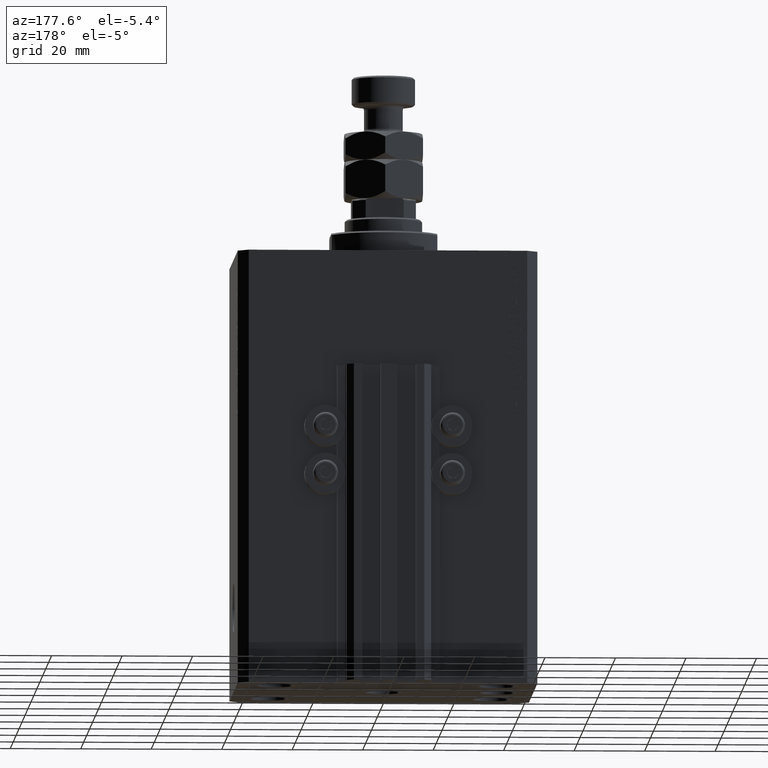
[diagram: clean part render]
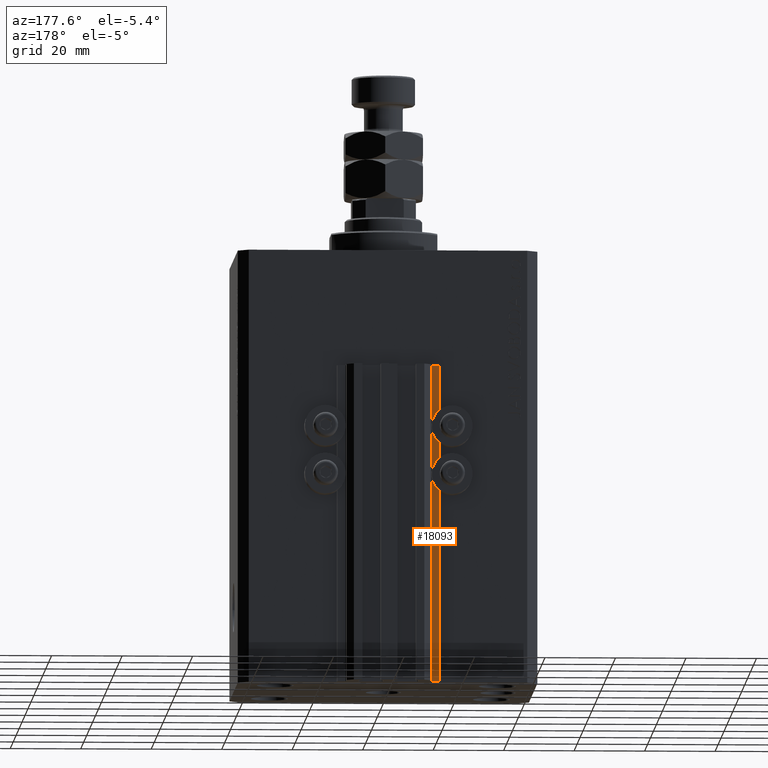
[diagram: same view with one face highlighted and labeled with its STEP entity id]
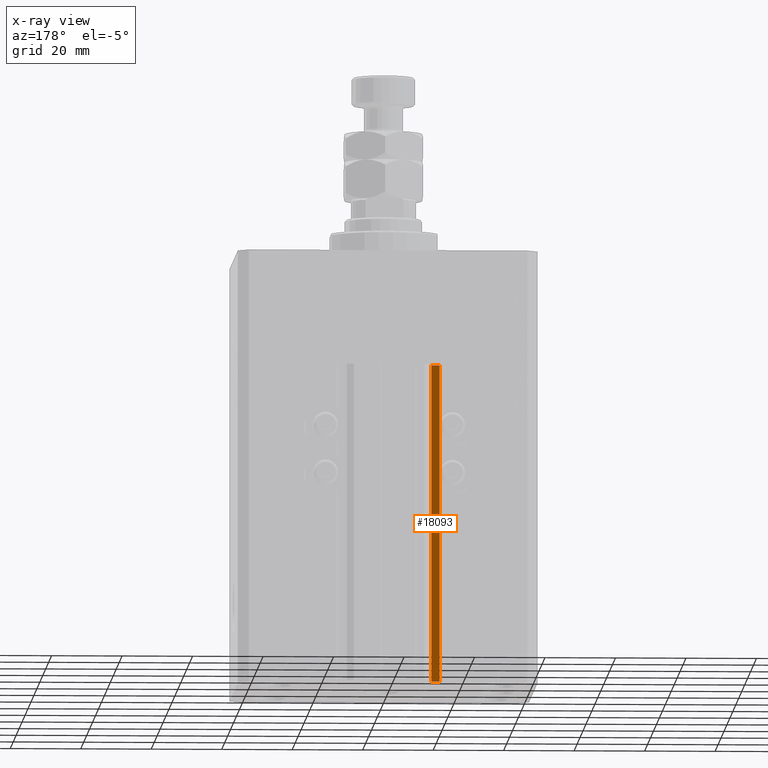
[diagram: x-ray of the same camera — body ghosted, the highlighted face saturated]
A machine part, auxiliary view. The second image highlights one B-rep face of the part: STEP entity #18093.
The next image is the same camera in x-ray: the body ghosted, the highlighted face saturated — about 0% of this face is hidden behind the body in this view.
In plain terms, the highlighted planar face has unit normal (0, 1, 0).
Its self-contained STEP definition (entity closure, byte-faithful):
#363 = EDGE_LOOP ( 'NONE', ( #14504, #31692, #21146, #29954 ) ) ;
#1720 = LINE ( 'NONE', #9416, #42799 ) ;
#3655 = CARTESIAN_POINT ( 'NONE',  ( -14.50000000000000000, 33.99999999999998579, -123.0000000000000000 ) ) ;
#4129 = CARTESIAN_POINT ( 'NONE',  ( -14.50000000000000000, 33.99999999999998579, -33.00000000000000000 ) ) ;
#5934 = DIRECTION ( 'NONE',  ( -1.000000000000000000, 0.000000000000000000, 0.000000000000000000 ) ) ;
#7272 = VERTEX_POINT ( 'NONE', #32483 ) ;
#8605 = FACE_OUTER_BOUND ( 'NONE', #363, .T. ) ;
#9059 = EDGE_CURVE ( 'NONE', #16579, #12718, #36679, .T. ) ;
#9102 = CARTESIAN_POINT ( 'NONE',  ( -12.20000000000000107, 33.99999999999998579, -123.0000000000000000 ) ) ;
#9416 = CARTESIAN_POINT ( 'NONE',  ( -12.20000000000000107, 33.99999999999998579, -123.0000000000000000 ) ) ;
#10143 = CARTESIAN_POINT ( 'NONE',  ( -12.20000000000000107, 33.99999999999998579, -33.00000000000000000 ) ) ;
#12718 = VERTEX_POINT ( 'NONE', #4129 ) ;
#14504 = ORIENTED_EDGE ( 'NONE', *, *, #9059, .F. ) ;
#16579 = VERTEX_POINT ( 'NONE', #26578 ) ;
#16918 = EDGE_CURVE ( 'NONE', #48629, #12718, #27726, .T. ) ;
#18093 = ADVANCED_FACE ( 'NONE', ( #8605 ), #27675, .T. ) ;
#20054 = EDGE_CURVE ( 'NONE', #7272, #48629, #1720, .T. ) ;
#21146 = ORIENTED_EDGE ( 'NONE', *, *, #20054, .T. ) ;
#26578 = CARTESIAN_POINT ( 'NONE',  ( -12.20000000000000107, 33.99999999999998579, -33.00000000000000000 ) ) ;
#27191 = DIRECTION ( 'NONE',  ( 0.000000000000000000, 0.000000000000000000, 1.000000000000000000 ) ) ;
#27675 = PLANE ( 'NONE',  #31075 ) ;
#27726 = LINE ( 'NONE', #42836, #35852 ) ;
#28986 = DIRECTION ( 'NONE',  ( -1.000000000000000000, 0.000000000000000000, 0.000000000000000000 ) ) ;
#29954 = ORIENTED_EDGE ( 'NONE', *, *, #16918, .T. ) ;
#31075 = AXIS2_PLACEMENT_3D ( 'NONE', #9102, #46747, #27191 ) ;
#31692 = ORIENTED_EDGE ( 'NONE', *, *, #44163, .F. ) ;
#31696 = DIRECTION ( 'NONE',  ( 0.000000000000000000, 0.000000000000000000, 1.000000000000000000 ) ) ;
#32483 = CARTESIAN_POINT ( 'NONE',  ( -12.20000000000000107, 33.99999999999998579, -123.0000000000000000 ) ) ;
#35852 = VECTOR ( 'NONE', #31696, 1000.000000000000000 ) ;
#36679 = LINE ( 'NONE', #10143, #45114 ) ;
#40661 = DIRECTION ( 'NONE',  ( 0.000000000000000000, 0.000000000000000000, 1.000000000000000000 ) ) ;
#42799 = VECTOR ( 'NONE', #5934, 1000.000000000000000 ) ;
#42836 = CARTESIAN_POINT ( 'NONE',  ( -14.50000000000000000, 33.99999999999998579, -123.0000000000000000 ) ) ;
#44163 = EDGE_CURVE ( 'NONE', #7272, #16579, #44633, .T. ) ;
#44410 = VECTOR ( 'NONE', #40661, 1000.000000000000000 ) ;
#44633 = LINE ( 'NONE', #48590, #44410 ) ;
#45114 = VECTOR ( 'NONE', #28986, 1000.000000000000000 ) ;
#46747 = DIRECTION ( 'NONE',  ( 0.000000000000000000, 1.000000000000000000, -0.000000000000000000 ) ) ;
#48590 = CARTESIAN_POINT ( 'NONE',  ( -12.20000000000000107, 33.99999999999998579, -123.0000000000000000 ) ) ;
#48629 = VERTEX_POINT ( 'NONE', #3655 ) ;